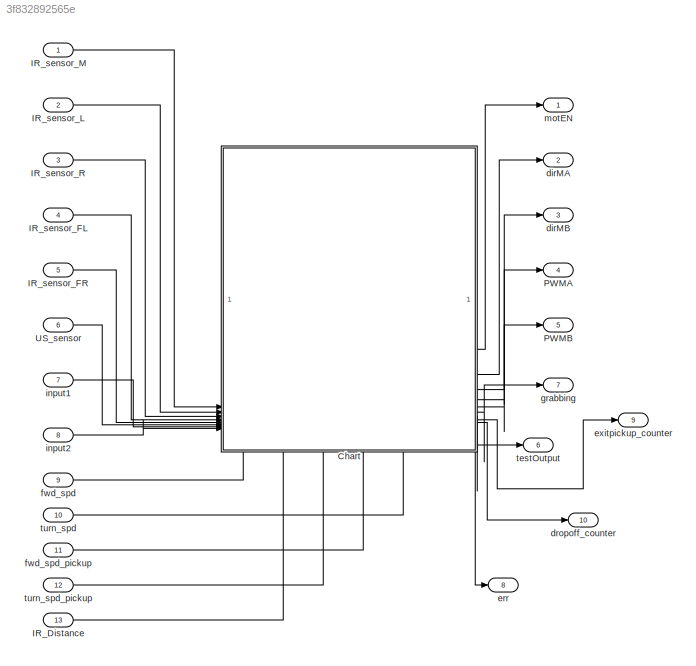
MODEL slx_3f832892565e
KIND model
CONFIG AbsTol = auto
CONFIG EnableMultiTasking = on
CONFIG FixedStep = 0.1
CONFIG MaxStep = auto
CONFIG MinStep = auto
CONFIG RelTol = 1e-3
CONFIG SampleTimeConstraint = Unconstrained
CONFIG SolverName = FixedStepDiscrete
CONFIG StartTime = 0.0
CONFIG StopTime = 10.0
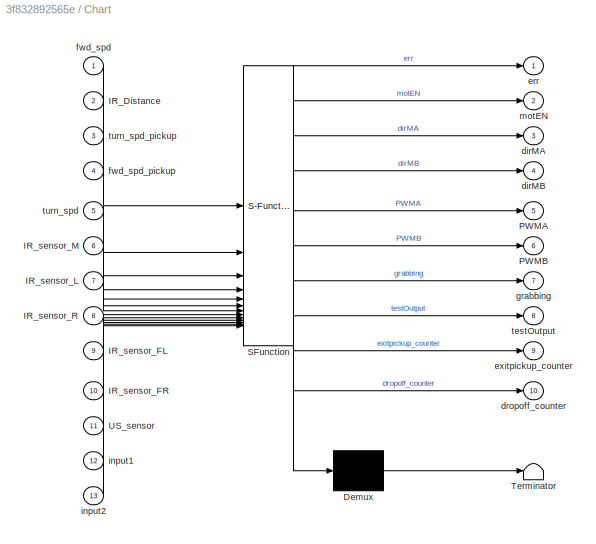
BLOCK [SubSystem] Chart
  ErrorFcn = Stateflow.Translate.translate
  PermitHierarchicalResolution = ExplicitOnly
  PortSchema = {"entries":[{"content":{"sides":[{"content":{"connectorIds":["In6","In7","In8","In9","In10","In11","In12","In13"]},"type":"ConnectorPlacement.EquallySpacedRectSide","uuid":"43f03211-d86a-43f4-92ba-476705433e91"},{"content":{"connectorIds":["Out2","Out3","Out4","Out5","Out6","Out7","Out8","Out9","Out10"],"side":"RIGHT"},"type":"ConnectorPlacement.EquallySpacedRectSide","uuid":"7770db13-7521-4160-b7...<+523ch>
  SFBlockType = Chart
  TreatAsAtomicUnit = on
BLOCK [Demux] Chart/ Demux 
  Outputs = 1
BLOCK [S-Function] Chart/ SFunction 
  EnableBusSupport = on
  FunctionName = sf_sfun
  PortCounts = [13 11]
  SFcnIsStateOwnerBlock = off
  SFunctionDeploymentMode = off
  Tag = Stateflow S-Function 3
BLOCK [Terminator] Chart/ Terminator 
BLOCK [Inport] Chart/IR_Distance
  Port = 2
BLOCK [Inport] Chart/IR_sensor_FL
  Port = 9
BLOCK [Inport] Chart/IR_sensor_FR
  Port = 10
BLOCK [Inport] Chart/IR_sensor_L
  Port = 7
BLOCK [Inport] Chart/IR_sensor_M
  Port = 6
BLOCK [Inport] Chart/IR_sensor_R
  Port = 8
BLOCK [Outport] Chart/PWMA
  Port = 5
BLOCK [Outport] Chart/PWMB
  Port = 6
BLOCK [Inport] Chart/US_sensor
  Port = 11
BLOCK [Outport] Chart/dirMA
  Port = 3
BLOCK [Outport] Chart/dirMB
  Port = 4
BLOCK [Outport] Chart/dropoff_counter
  Port = 10
BLOCK [Outport] Chart/err
BLOCK [Outport] Chart/exitpickup_counter
  Port = 9
BLOCK [Inport] Chart/fwd_spd
BLOCK [Inport] Chart/fwd_spd_pickup
  Port = 4
BLOCK [Outport] Chart/grabbing
  Port = 7
BLOCK [Inport] Chart/input1
  Port = 12
BLOCK [Inport] Chart/input2
  Port = 13
BLOCK [Outport] Chart/motEN
  Port = 2
BLOCK [Outport] Chart/testOutput
  Port = 8
BLOCK [Inport] Chart/turn_spd
  Port = 5
BLOCK [Inport] Chart/turn_spd_pickup
  Port = 3
BLOCK [Inport] IR_Distance
  Port = 13
BLOCK [Inport] IR_sensor_FL
  Port = 4
BLOCK [Inport] IR_sensor_FR
  Port = 5
BLOCK [Inport] IR_sensor_L
  Port = 2
BLOCK [Inport] IR_sensor_M
BLOCK [Inport] IR_sensor_R
  Port = 3
BLOCK [Outport] PWMA
  Port = 4
BLOCK [Outport] PWMB
  Port = 5
BLOCK [Inport] US_sensor
  Port = 6
BLOCK [Outport] dirMA
  Port = 2
BLOCK [Outport] dirMB
  Port = 3
BLOCK [Outport] dropoff_counter
  Port = 10
BLOCK [Outport] err
  Port = 8
BLOCK [Outport] exitpickup_counter
  Port = 9
BLOCK [Inport] fwd_spd
  Port = 9
BLOCK [Inport] fwd_spd_pickup
  Port = 11
BLOCK [Outport] grabbing
  Port = 7
BLOCK [Inport] input1
  Port = 7
BLOCK [Inport] input2
  Port = 8
BLOCK [Outport] motEN
BLOCK [Outport] testOutput
  Port = 6
BLOCK [Inport] turn_spd
  Port = 10
BLOCK [Inport] turn_spd_pickup
  Port = 12
LINE Chart:1 -> err:1
LINE Chart:10 -> dropoff_counter:1
LINE Chart:2 -> motEN:1
LINE Chart:3 -> dirMA:1
LINE Chart:4 -> dirMB:1
LINE Chart:5 -> PWMA:1
LINE Chart:6 -> PWMB:1
LINE Chart:7 -> grabbing:1
LINE Chart:8 -> testOutput:1
LINE Chart:9 -> exitpickup_counter:1
LINE IR_Distance:1 -> Chart:2
LINE IR_sensor_FL:1 -> Chart:9
LINE IR_sensor_FR:1 -> Chart:10
LINE IR_sensor_L:1 -> Chart:7
LINE IR_sensor_M:1 -> Chart:6
LINE IR_sensor_R:1 -> Chart:8
LINE US_sensor:1 -> Chart:11
LINE fwd_spd:1 -> Chart:1
LINE fwd_spd_pickup:1 -> Chart:4
LINE input1:1 -> Chart:12
LINE input2:1 -> Chart:13
LINE turn_spd:1 -> Chart:5
LINE turn_spd_pickup:1 -> Chart:3
CHART Chart states=31 transitions=55
  STATE_LABEL 'HARDLEFT1\nen:\ntestOutput = 5;\ndu:\nmotEN = 1;\ndirMA = 1;\ndirMB = 0;\nPWMA = turn_spd;\nPWMB = turn_spd;\nleft_counter = left_counter + 1'
  STATE_LABEL 'IDLE\nen:\ntestOutput = 0;\nx = 0;\ny = 0;\ngrabbing = 0;\ndu:\nmotEN = 1;\ndirMA = 1;\ndirMB = 1;\nPWMA = 0;\nPWMB = 0;\nexitpickup_counter = 0;\nleft_counter = 0;\ndropoff_counter = 0;\ndrop_check = 0;'
  STATE_LABEL 'HARDRIGHT_DROPOFF\nen:\ntestOutput = 20;\nmotEN = 1;\ndirMA = 0;\ndirMB = 1;\nPWMA = turn_spd_pickup;\nPWMB = 0.9*turn_spd_pickup;\ndrop_check = 1;\ndu:\ntestOutput = 100;\nmotEN = 1;\ndirMA = 0;\ndirMB = 1;\nPWMA = turn_spd_pickup;\nPWMB = 0.9*turn_spd_pickup;'
  STATE_LABEL 'HARDLEFT_DROPOFF\nen:\ntestOutput = 9;\nmotEN = 1;\ndirMA = 1;\ndirMB = 0;\nPWMA = 0.75*turn_spd_pickup;\nPWMB = turn_spd_pickup;\ndu:\ntestOutput = 100;\nmotEN = 1;\ndirMA = 1;\ndirMB = 0;\nPWMA = 0.75*turn_spd_pickup;\nPWMB = turn_spd_pickup'
  STATE_LABEL 'FORWARD\nen:\ntestOutput = 1;\ndu:\nmotEN = 1;\ndirMA = 0;\ndirMB = 0;\nerr = IR_sensor_L - IR_sensor_R;\nPWMA = fwd_spd+0.3*err;\nPWMB = fwd_spd-0.3*err;\n'
  STATE_LABEL 'DROPOFFZONE\nen:\ndropoff_counter = dropoff_counter + 1;\ntestOutput = 19;\nmotEN = 1;\ndirMA = 1;\ndirMB = 1;\nPWMA = 0;\nPWMB = 0;\ndu:\ntestOutput = 100;\nmotEN = 1;\ndirMA = 1;\ndirMB = 1;\nPWMA = 0;\nPWMB = 0;'
  STATE_LABEL 'STEERLEFT\nen:\ntestOutput = 2;\ndu:\nmotEN = 1;\ndirMA = 1;\ndirMB = 0;\nPWMA = turn_spd;\nPWMB = turn_spd;'
  STATE_LABEL 'STEERRIGHT\nen:\ntestOutput = 3;\ndu:\nmotEN = 1;\ndirMA = 0;\ndirMB = 1;\nPWMA = turn_spd;\nPWMB = turn_spd;'
  STATE_LABEL 'PAUSE\nen:\ntestOutput = 69;\nmotEN = 1;\ndirMA = 1;\ndirMB = 1;\nPWMA = 0;\nPWMB = 0;\n'
  STATE_LABEL 'FORWARDDROPOFF\nen:\ntestOutput = 15;\nmotEN = 1;\ndirMA = 0;\ndirMB = 0;\nPWMA = fwd_spd;\nPWMB = fwd_spd;\n'
  STATE_LABEL 'REVERSE1\nen:\ntestOutput = 23;\ndu:\nmotEN = 1;\ndirMA = 1;\ndirMB = 1;\nPWMA = fwd_spd * 1.05;\nPWMB = fwd_spd*1*05;'
  STATE_LABEL 'DROPZONE\nen:\ntestOutput = 21;\nmotEN = 0;\ndirMA = 1;\ndirMB = 1;\nPWMA = 0;\nPWMB = 0;\n'
  STATE_LABEL 'STOP\nen:\ntestOutput = 6;\ndu:\nmotEN = 1;\ndirMA = 1;\ndirMB = 1;\nPWMA = 0;\nPWMB = 0;'
  STATE_LABEL 'HARDLEFT_PICKUP1\nen:\ntestOutput = 16;\nmotEN = 1;\ndirMA = 1;\ndirMB = 0;\nPWMA = 0.55*turn_spd_pickup;\nPWMB = turn_spd_pickup;\ndu:\ntestOutput = 100;\nmotEN = 1;\ndirMA = 1;\ndirMB = 0;\nPWMA = 0.55*turn_spd_pickup;\nPWMB = turn_spd_pickup'
  STATE_LABEL 'PICKUPZONE\nen:\ntestOutput = 7;\nmotEN = 1;\ndirMA = 1;\ndirMB = 1;\nPWMA = 0;\nPWMB = 0;\ndu:\n'
  STATE_LABEL 'HARDRIGHT_PICKUP1\nen:\ntestOutput = 17;\nmotEN = 1;\ndirMA = 0;\ndirMB = 1;\nPWMA = turn_spd_pickup;\nPWMB = 0.8 * turn_spd_pickup;\ndu:\ntestOutput = 100;\nmotEN = 1;\ndirMA = 0;\ndirMB = 1;\nPWMA = turn_spd_pickup;\nPWMB = 0.8*turn_spd_pickup;'
  STATE_LABEL 'FORWARDDELAY1\nen:\ntestOutput = 15;\nmotEN = 1;\ndirMA = 0;\ndirMB = 0;\nPWMA = fwd_spd_pickup;\nPWMB = fwd_spd_pickup;\n'
  STATE_LABEL 'FORWARDDELAY\nen:\ntestOutput = 15;\nmotEN = 1;\ndirMA = 0;\ndirMB = 0;\nPWMA = fwd_spd_pickup;\nPWMB = fwd_spd_pickup;\n'
  STATE_LABEL 'PICKUPZONE1\nen:\ntestOutput = 7;\nmotEN = 1;\ndirMA = 1;\ndirMB = 1;\nPWMA = 0;\nPWMB = 0;\ndu:\n'
  STATE_LABEL 'PICKUPZONE2\nen:\ntestOutput = 7;\nmotEN = 1;\ndirMA = 1;\ndirMB = 1;\nPWMA = 0;\nPWMB = 0;\ndu:\n'
  STATE_LABEL 'HARDRIGHT_PICKUP\nen:\ntestOutput = 8;\nif exitpickup_counter == 0\n    motEN = 1;\n    dirMA = 0;\n    dirMB = 1;\n    PWMA = 0.9*turn_spd_pickup;\n    PWMB = turn_spd_pickup;\nelseif exitpickup_counter == 1\n    motEN = 1;\n    dirMA = 0;\n    dirMB = 1;\n    PWMA = turn_spd_pickup;\n    PWMB = 0.8*turn_spd_pickup;\nelse\n    motEN = 1;\n    dirMA = 0;\n    dirMB = 1;\n    PWMA = turn_spd_pickup;\n    PWMB = 0.8*tu...<+419ch>'
  STATE_LABEL 'HARDLEFT_PICKUP\nen:\ntestOutput = 9;\nif exitpickup_counter == 0;\n    motEN = 1;\n    dirMA = 1;\n    dirMB = 0;\n    PWMA = 0.85*turn_spd_pickup;\n    PWMB = turn_spd_pickup;\nelseif exitpickup_counter == 1;\n    motEN = 1;\n    dirMA = 1;\n    dirMB = 0;\n    PWMA = 0.75*turn_spd_pickup;\n    PWMB = turn_spd_pickup;\nelse\n    motEN = 1;\n    dirMA = 1;\n    dirMB = 0;\n    PWMA = 0.75*turn_spd_pickup;\n    PWMB ...<+431ch>'
  STATE_LABEL 'FOWARDDELAY2\nen:\ntestOutput = 70;\nmotEN = 1;\ndirMA = 0;\ndirMB = 0;\nPWMA = fwd_spd_pickup;\nPWMB = fwd_spd_pickup;\ndu:\n'
  STATE_LABEL 'FORWARDDELAY3\nen:\ntestOutput = 70;\nmotEN = 1;\ndirMA = 0;\ndirMB = 0;\nPWMA = fwd_spd_pickup;\nPWMB = fwd_spd_pickup;\ndu:\n'
  STATE_LABEL 'STEERLEFT1\nen:\ntestOutput = 11;\ndu:\nmotEN = 1;\ndirMA = 1;\ndirMB = 0;\nPWMA = 0,9*turn_spd_pickup;\nPWMB = 0.9*turn_spd_pickup;'
  STATE_LABEL 'STEERRIGHT1\nen:\ntestOutput = 12;\ndu:\nmotEN = 1;\ndirMA = 0;\ndirMB = 1;\nPWMA = 0.9*turn_spd_pickup;\nPWMB = 0.9*turn_spd_pickup;'
  STATE_LABEL 'PICKUPFORWARD\nen:\ntestOutput = 10;\ndu:\nmotEN = 1;\ndirMA = 0;\ndirMB = 0;\nerr = IR_sensor_L - IR_sensor_R;\nPWMA = fwd_spd_pickup+0.1*err;\nPWMB = fwd_spd_pickup-0.1*err;'
  STATE_LABEL 'STOP_PICKUP\nen:\ngrabbing = 1;\ntestOutput = 13;\ndu:\nmotEN = 1;\ndirMA = 1;\ndirMB = 1;\nPWMA = 0;\nPWMB = 0;\n'
  STATE_LABEL 'GRABBING\nen:\ntestOutput = 22;\nmotEN = 0;\ndirMA = 1;\ndirMB = 1;\nPWMA = 0;\nPWMB = 0;\n'
  STATE_LABEL 'REVERSE\nen:\ntestOutput = 14;\nexitpickup_counter = exitpickup_counter + 1\ndu:\nmotEN = 1;\ndirMA = 1;\ndirMB = 1;\nerr = IR_sensor_L - IR_sensor_R;\nPWMA = 1.05*fwd_spd_pickup; %-0.75*err;\nPWMB = 1.05*fwd_spd_pickup; %+0.75*err;\n;\n'
  STATE_LABEL 'LINEUPREV\nen:\ntestOutput = 18;\ndu:\ntestOutput = 100;\nmotEN = 1;\ndirMA = 1;\ndirMB = 1;\nPWMA = 1.05*fwd_spd_pickup;\nPWMB = 1.05*fwd_spd_pickup;'
CHART  states=0 transitions=0
